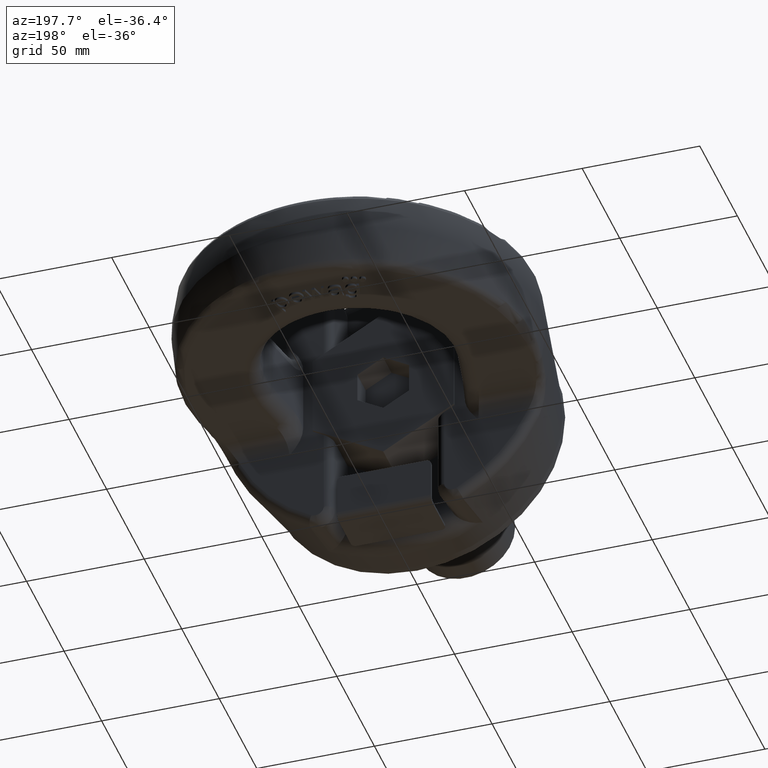
[diagram: clean part render]
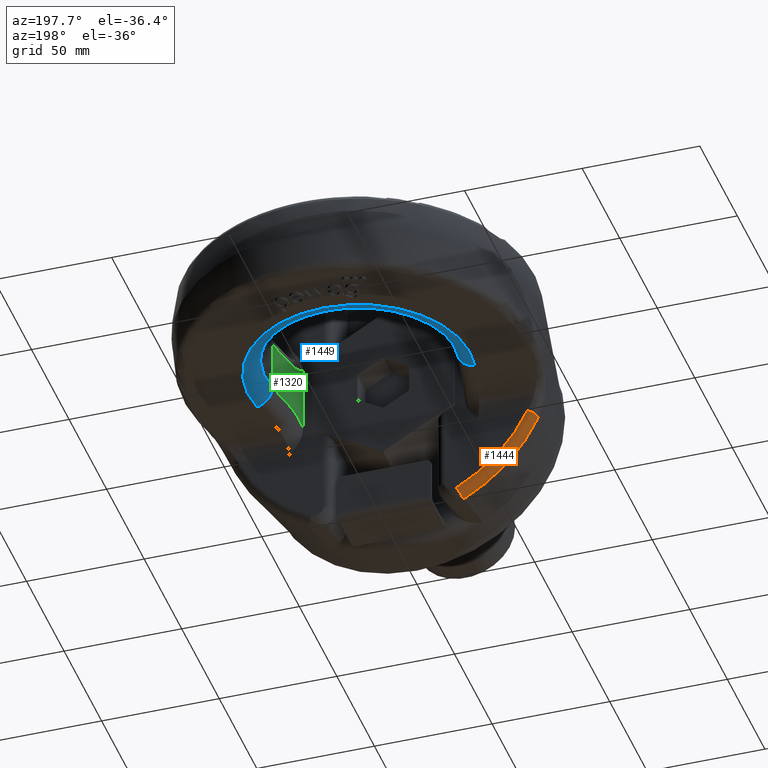
[diagram: same view with three faces highlighted in distinct colors, each labeled with its STEP entity id]
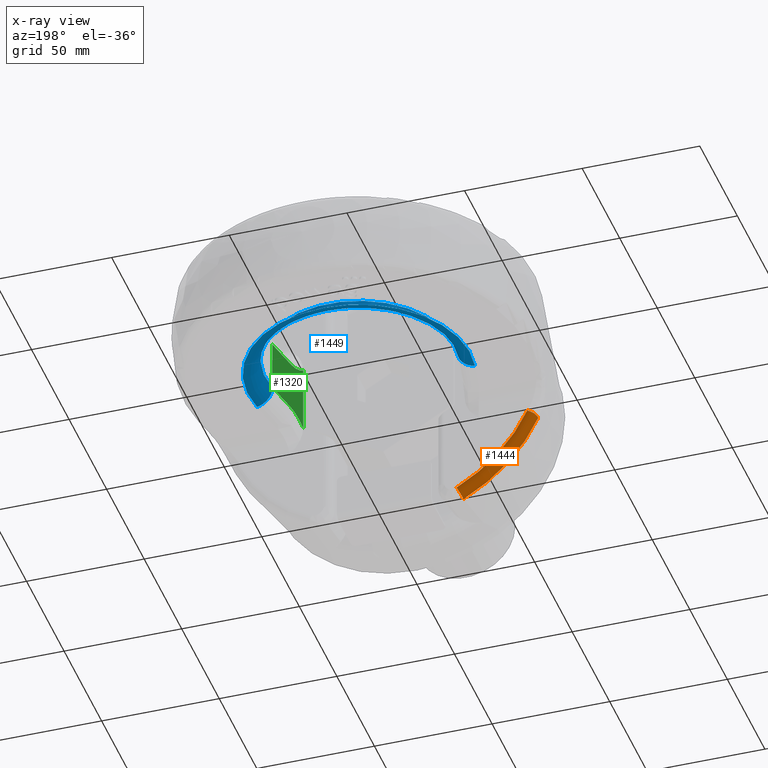
[diagram: x-ray of the same camera — body ghosted, the three highlighted faces saturated]
A machine part, auxiliary view with three faces highlighted in distinct colors.
The next image is the same camera in x-ray (body ghosted, the three faces saturated) — at least one of them is partly hidden behind the body in this view.
Their STEP definitions:

[orange] entity #1444 — the highlighted toroidal blend (fillet) surface has major radius 66.6261 mm and minor (blend) radius 3.6 mm.
#1022=TOROIDAL_SURFACE('',#5277,66.6261006792199,3.6);
#1212=FACE_OUTER_BOUND('',#1975,.T.);
#1444=ADVANCED_FACE('',(#1212),#1022,.T.);
#1671=CIRCLE('',#5124,66.6261006792199);
#1677=CIRCLE('',#5135,70.159531379421);
#1722=CIRCLE('',#5275,3.6);
#1723=CIRCLE('',#5276,3.6);
#1975=EDGE_LOOP('',(#3417,#3418,#3419,#3420));
#3417=ORIENTED_EDGE('',*,*,#4655,.T.);
#3418=ORIENTED_EDGE('',*,*,#4338,.F.);
#3419=ORIENTED_EDGE('',*,*,#4656,.F.);
#3420=ORIENTED_EDGE('',*,*,#4375,.F.);
#3950=VERTEX_POINT('',#6607);
#3951=VERTEX_POINT('',#6609);
#3985=VERTEX_POINT('',#6772);
#3986=VERTEX_POINT('',#6774);
#4338=EDGE_CURVE('',#3950,#3951,#1671,.T.);
#4375=EDGE_CURVE('',#3985,#3986,#1677,.T.);
#4655=EDGE_CURVE('',#3985,#3951,#1722,.T.);
#4656=EDGE_CURVE('',#3986,#3950,#1723,.T.);
#5124=AXIS2_PLACEMENT_3D('',#6608,#5442,#5443);
#5135=AXIS2_PLACEMENT_3D('',#6773,#5483,#5484);
#5275=AXIS2_PLACEMENT_3D('',#8573,#5905,#5906);
#5276=AXIS2_PLACEMENT_3D('',#8592,#5907,#5908);
#5277=AXIS2_PLACEMENT_3D('',#8593,#5909,#5910);
#5442=DIRECTION('',(1.12664696544196E-15,1.,2.63963326331521E-30));
#5443=DIRECTION('',(1.,-1.14561458895021E-15,2.34291072916505E-15));
#5483=DIRECTION('',(-1.12664696544196E-15,-1.,-2.63963326331521E-30));
#5484=DIRECTION('',(-1.,1.08791822639465E-15,-2.34291072916505E-15));
#5905=DIRECTION('',(0.405246588420285,-6.84852527684667E-15,-0.914207417697822));
#5906=DIRECTION('',(-0.914207417697822,0.,-0.405246588420285));
#5907=DIRECTION('',(0.886456828950116,-4.39110130693997E-16,-0.462811290276831));
#5908=DIRECTION('',(-0.462811290276832,0.,-0.886456828950116));
#5909=DIRECTION('',(1.12664696544196E-15,1.,2.63963326331521E-30));
#5910=DIRECTION('',(1.,-1.08688695805042E-15,2.34291072916505E-15));
#6607=CARTESIAN_POINT('',(-30.8353116214637,44.,-59.0611619334124));
#6608=CARTESIAN_POINT('',(2.7889256141697E-13,43.9999999999999,6.53420374428141E-28));
#6609=CARTESIAN_POINT('',(-60.9100754532247,44.,-27.0000000000002));
#6772=CARTESIAN_POINT('',(-64.1403640092698,39.7108937042253,-28.4319107366762));
#6773=CARTESIAN_POINT('',(9.43361356245471E-14,39.7108937042252,2.21021144302721E-28));
#6774=CARTESIAN_POINT('',(-32.4706232429275,39.7108937042252,-62.1933957072277));
#8573=CARTESIAN_POINT('',(-60.9100754532247,40.4,-27.0000000000002));
#8592=CARTESIAN_POINT('',(-30.8353116214637,40.4,-59.0611619334124));
#8593=CARTESIAN_POINT('',(2.74836632341379E-13,40.3999999999999,6.43917694680206E-28));

[blue] entity #1449 — the highlighted toroidal blend (fillet) surface has major radius 47.2 mm and minor (blend) radius 7.2 mm.
#1023=TOROIDAL_SURFACE('',#5284,47.2,7.2);
#1217=FACE_OUTER_BOUND('',#1980,.T.);
#1449=ADVANCED_FACE('',(#1217),#1023,.T.);
#1688=CIRCLE('',#5148,40.);
#1712=CIRCLE('',#5247,47.2);
#1726=CIRCLE('',#5281,7.2);
#1727=CIRCLE('',#5283,7.2);
#1980=EDGE_LOOP('',(#3437,#3438,#3439,#3440));
#3437=ORIENTED_EDGE('',*,*,#4659,.F.);
#3438=ORIENTED_EDGE('',*,*,#4398,.F.);
#3439=ORIENTED_EDGE('',*,*,#4660,.T.);
#3440=ORIENTED_EDGE('',*,*,#4600,.F.);
#4003=VERTEX_POINT('',#6870);
#4006=VERTEX_POINT('',#6875);
#4117=VERTEX_POINT('',#8227);
#4118=VERTEX_POINT('',#8228);
#4398=EDGE_CURVE('',#4006,#4003,#1688,.T.);
#4600=EDGE_CURVE('',#4117,#4118,#1712,.T.);
#4659=EDGE_CURVE('',#4003,#4117,#1726,.T.);
#4660=EDGE_CURVE('',#4006,#4118,#1727,.T.);
#5148=AXIS2_PLACEMENT_3D('',#6876,#5511,#5512);
#5247=AXIS2_PLACEMENT_3D('',#8226,#5828,#5829);
#5281=AXIS2_PLACEMENT_3D('',#8657,#5917,#5918);
#5283=AXIS2_PLACEMENT_3D('',#8659,#5921,#5922);
#5284=AXIS2_PLACEMENT_3D('',#8660,#5923,#5924);
#5511=DIRECTION('',(2.34291072916505E-15,1.16620065611886E-16,-1.));
#5512=DIRECTION('',(-3.08148791101958E-31,1.,1.30104260698261E-16));
#5828=DIRECTION('',(-2.34291072916505E-15,-1.16620065611886E-16,1.));
#5829=DIRECTION('',(-2.61143043306744E-31,1.,1.47010464065831E-16));
#5917=DIRECTION('',(-0.191418415492983,-0.981508527833638,-4.48476259418283E-16));
#5918=DIRECTION('',(0.981508527833639,-0.191418415492983,2.4093381610789E-15));
#5921=DIRECTION('',(-0.191418415492983,0.981508527833638,-4.48476259418284E-16));
#5922=DIRECTION('',(-0.981508527833639,-0.191418415492983,-2.4093381610789E-15));
#5923=DIRECTION('',(-2.34291072916505E-15,-1.16620065611886E-16,1.));
#5924=DIRECTION('',(-2.83224991821652E-31,1.,1.27553196763001E-16));
#6870=CARTESIAN_POINT('',(39.2603411133456,69.3432633802807,-10.7999999999999));
#6875=CARTESIAN_POINT('',(-39.2603411133455,69.3432633802806,-10.8000000000001));
#6876=CARTESIAN_POINT('',(2.53034358749826E-14,77.,-10.8));
#8226=CARTESIAN_POINT('',(4.21723931249709E-14,77.,-18.));
#8227=CARTESIAN_POINT('',(46.3272025137478,67.9650507887312,-17.9999999999999));
#8228=CARTESIAN_POINT('',(-46.3272025137477,67.9650507887312,-18.0000000000001));
#8657=CARTESIAN_POINT('',(46.3272025137478,67.9650507887312,-10.7999999999999));
#8659=CARTESIAN_POINT('',(-46.3272025137477,67.9650507887312,-10.8000000000001));
#8660=CARTESIAN_POINT('',(2.53034358749826E-14,77.,-10.8));

[green] entity #1320 — the highlighted planar face has unit normal (-0.9815, 0.1914, 0).
#1046=ELLIPSE('',#5153,16.5052055490096,16.2);
#1047=ELLIPSE('',#5154,16.5052055490096,16.2);
#1099=FACE_OUTER_BOUND('',#1833,.T.);
#1320=ADVANCED_FACE('',(#1099),#1556,.T.);
#1556=PLANE('',#5155);
#1833=EDGE_LOOP('',(#2845,#2846,#2847,#2848,#2849,#2850));
#2144=LINE('',#6713,#2424);
#2149=LINE('',#6869,#2429);
#2153=LINE('',#6887,#2433);
#2154=LINE('',#6888,#2434);
#2424=VECTOR('',#5472,1.);
#2429=VECTOR('',#5507,1.);
#2433=VECTOR('',#5525,1.);
#2434=VECTOR('',#5526,1.);
#2845=ORIENTED_EDGE('',*,*,#4364,.T.);
#2846=ORIENTED_EDGE('',*,*,#4403,.T.);
#2847=ORIENTED_EDGE('',*,*,#4404,.T.);
#2848=ORIENTED_EDGE('',*,*,#4395,.F.);
#2849=ORIENTED_EDGE('',*,*,#4405,.T.);
#2850=ORIENTED_EDGE('',*,*,#4406,.T.);
#3974=VERTEX_POINT('',#6712);
#3975=VERTEX_POINT('',#6714);
#4003=VERTEX_POINT('',#6870);
#4004=VERTEX_POINT('',#6871);
#4009=VERTEX_POINT('',#6886);
#4010=VERTEX_POINT('',#6889);
#4364=EDGE_CURVE('',#3975,#3974,#2144,.T.);
#4395=EDGE_CURVE('',#4003,#4004,#2149,.T.);
#4403=EDGE_CURVE('',#3974,#4009,#1046,.T.);
#4404=EDGE_CURVE('',#4009,#4004,#2153,.T.);
#4405=EDGE_CURVE('',#4003,#4010,#2154,.T.);
#4406=EDGE_CURVE('',#4010,#3975,#1047,.T.);
#5153=AXIS2_PLACEMENT_3D('',#6885,#5523,#5524);
#5154=AXIS2_PLACEMENT_3D('',#6890,#5527,#5528);
#5155=AXIS2_PLACEMENT_3D('',#6891,#5529,#5530);
#5472=DIRECTION('',(0.,0.,1.));
#5507=DIRECTION('',(0.,0.,1.));
#5523=DIRECTION('',(0.981508527833638,-0.191418415492983,0.));
#5524=DIRECTION('',(-0.191418415492983,-0.981508527833638,6.86400222741835E-31));
#5525=DIRECTION('',(0.191418415492983,0.981508527833638,-1.14463588914585E-16));
#5526=DIRECTION('',(-0.191418415492983,-0.981508527833638,-5.62939848332869E-16));
#5527=DIRECTION('',(0.981508527833638,-0.191418415492983,2.29958686062842E-15));
#5528=DIRECTION('',(0.191418415492983,0.981508527833638,4.48476259418285E-16));
#5529=DIRECTION('',(-0.981508527833638,0.191418415492983,0.));
#5530=DIRECTION('',(-0.191418415492983,-0.981508527833638,0.));
#6712=CARTESIAN_POINT('',(34.317778535329,44.,14.5608399236684));
#6713=CARTESIAN_POINT('',(34.317778535329,44.,83.6));
#6714=CARTESIAN_POINT('',(34.317778535329,44.,-14.5608399236683));
#6869=CARTESIAN_POINT('',(39.2603411133455,69.3432633802806,83.6));
#6870=CARTESIAN_POINT('',(39.2603411133456,69.3432633802807,-10.7999999999999));
#6871=CARTESIAN_POINT('',(39.2603411133455,69.3432633802806,10.8));
#6885=CARTESIAN_POINT('',(36.3417864309185,54.3782125915495,27.));
#6886=CARTESIAN_POINT('',(36.3417864309185,54.3782125915495,10.8));
#6887=CARTESIAN_POINT('',(39.2603411133455,69.3432633802806,10.8));
#6888=CARTESIAN_POINT('',(36.0730009206498,53.,-10.7999999999999));
#6889=CARTESIAN_POINT('',(36.3417864309185,54.3782125915495,-10.7999999999999));
#6890=CARTESIAN_POINT('',(36.3417864309185,54.3782125915495,-26.9999999999999));
#6891=CARTESIAN_POINT('',(34.317778535329,44.,83.6));